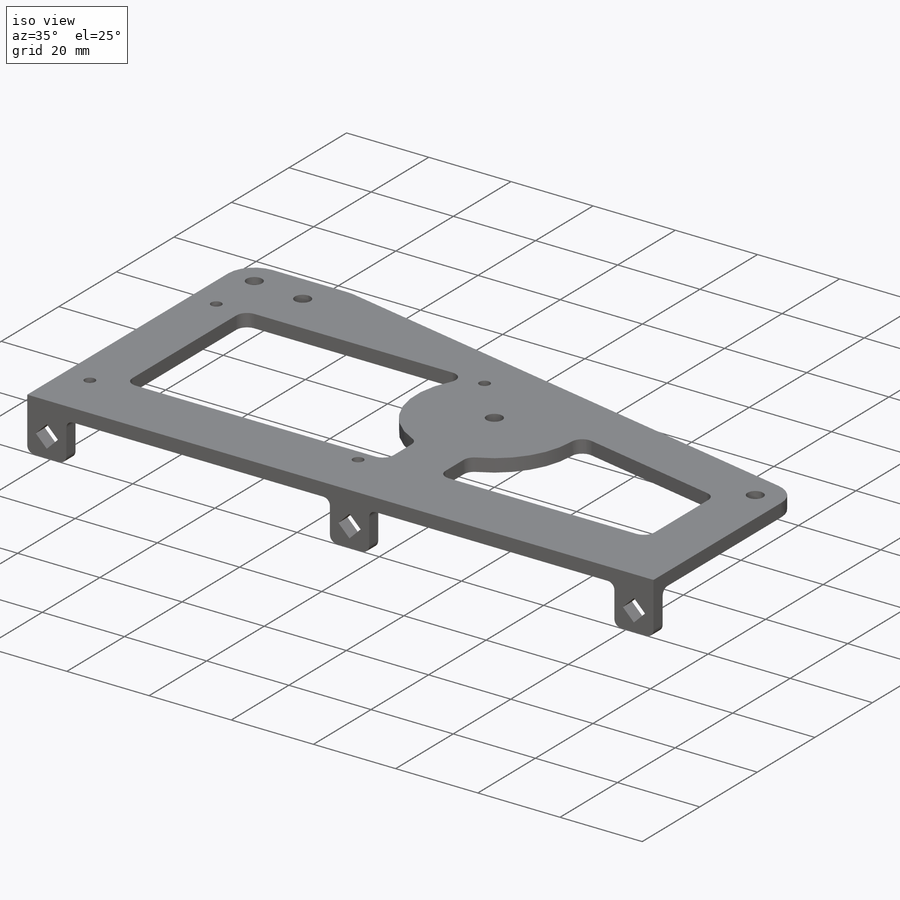
[diagram: iso view]
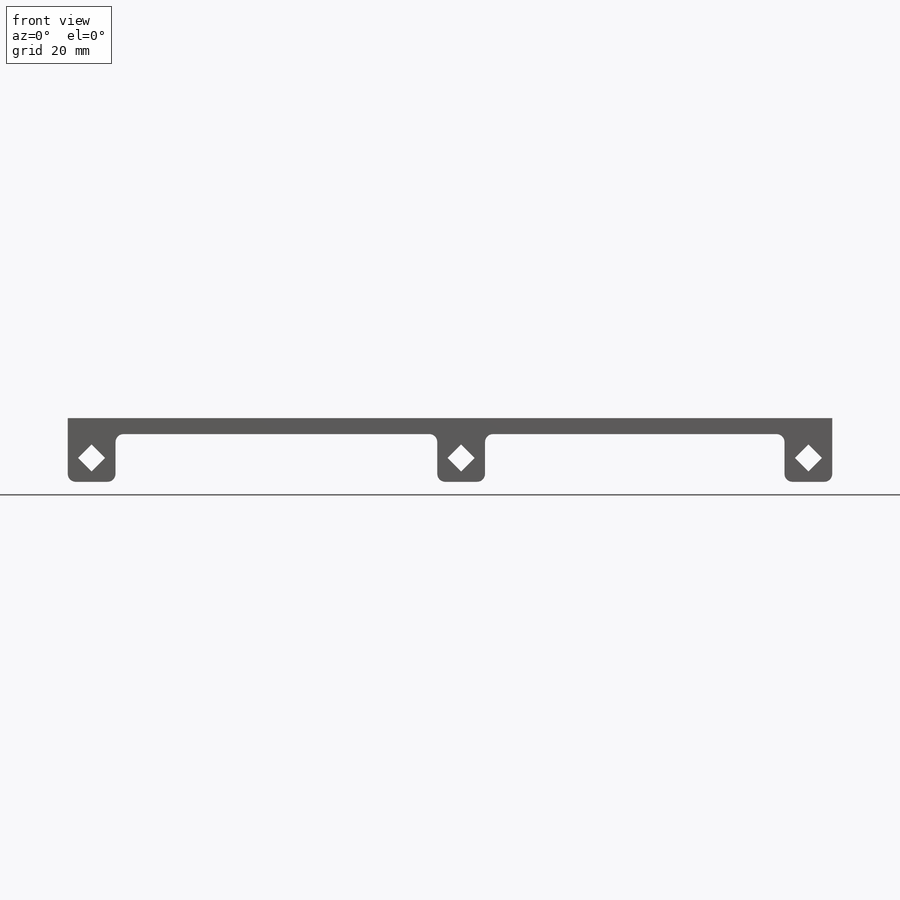
[diagram: front view]
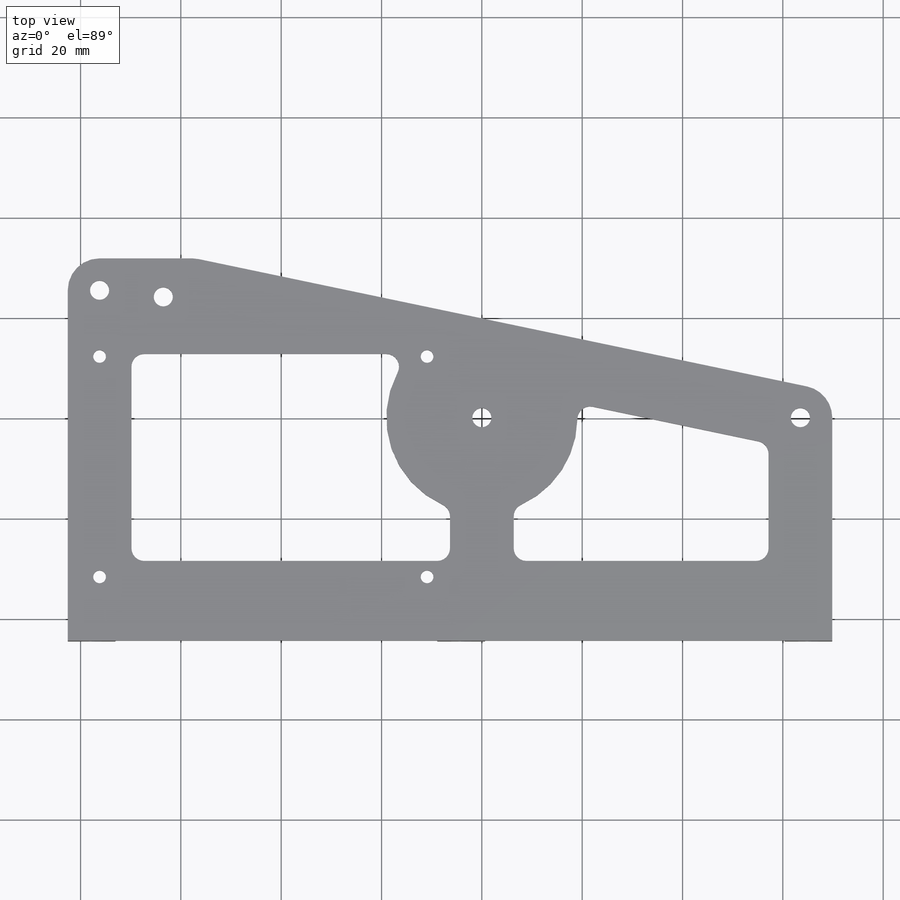
[diagram: top view]
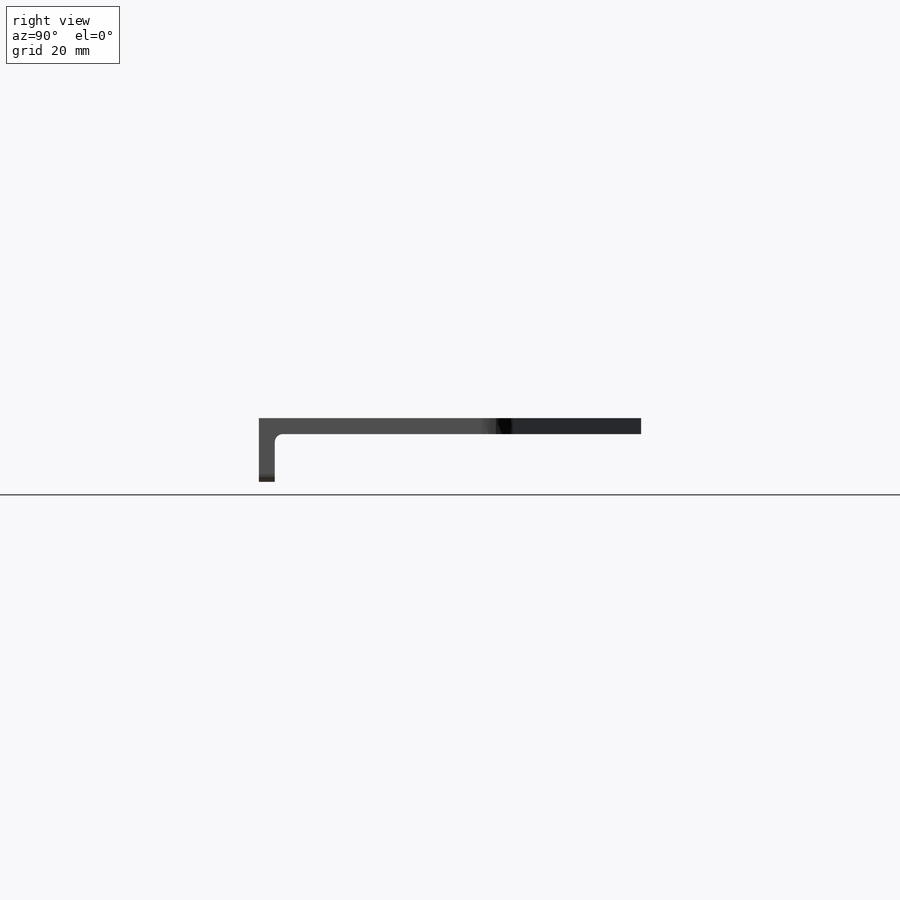
[diagram: right view]
SOLIDWORKS PART (.sldprt)
format: sldprt  version: not decoded by parser v0  size: 351,232 bytes
history: native  units: mm
features: sketch x3, extrude x2, fillet x2, material x1, cut_extrude x1 (+13 scaffold rows collapsed)
feature tree (22):
  scaffold x13  (default folders/planes/origin — collapsed)
  material  "Material <not specified>"
  sketch  "Sketch1"  dims[c1.D1=3.81mm c1.D2=2.54mm c1.D3=25.4mm c1.D5=63.5mm c1.D10=2.54mm c1.D11=3.81mm c1.D14=3.81mm c2.D3=12.7mm c2.D4=57.15mm c2.D6=15.875mm c2.D7=~119.279236mm c3.D7=15.0deg c3.D8=228.6mm c3.D9=6.35mm c3.D12=25.4mm c3.D13=76.2mm c3.D15=38.1mm c3.D16=6.35mm c3.D17=~11.79424mm c4.D17=90.0deg c5.D17=6.35mm c5.D18=6.35mm c5.D19=6.35mm c5.D20=25.4mm c5.D21=76.2mm]
  extrude  "Boss-Extrude1"  Depth=3.175mm
  sketch  "Sketch2"  dims[c1.D1=19.05mm c1.D9=2.54mm c1.D14=2.54mm c1.D2=12.7mm c1.D3=19.05mm c1.D4=15.875mm c1.D5=6.35mm c1.D6=6.35mm c1.D7=12.7mm c1.D8=~38.178329mm c2.D8=~0.414398deg c3.D8=12.7mm c3.D10=43.942mm c3.D11=65.278mm c3.D12=6.35mm c3.D13=12.7mm]
  cut_extrude  "Cut-Extrude1"  Depth=3.175mm
  fillet  "Fillet1"  Radius=6.35mm
  sketch  "Sketch3"  dims[D1=9.525mm D2=9.525mm D3=4.7625mm D4=4.7625mm D5=3.81mm D6=3.81mm D7=4.7625mm D8=4.7625mm D9=3.81mm D10=4.7625mm D11=4.7625mm D12=49.2125mm]
  extrude  "Boss-Extrude2"  Depth=3.175mm
  fillet  "Fillet2"  Radius=1.5875mm
decode coverage: 8 of 8 modeling features carry decoded parameters
note: ~ marks probable driven/reference dimensions
note: suppression state not decoded; provenance and decode notes live in map.json
